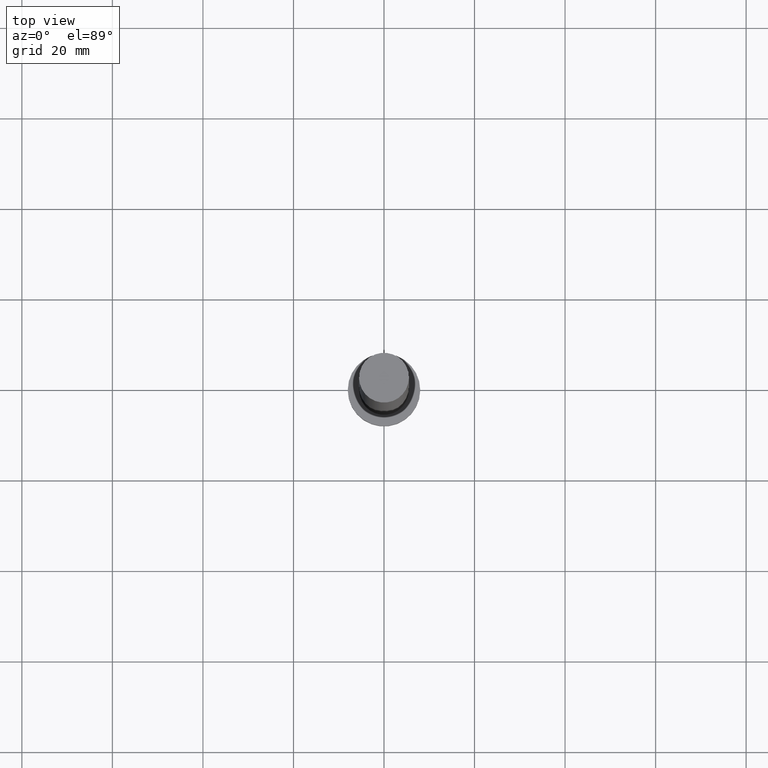
[diagram: clean part render]
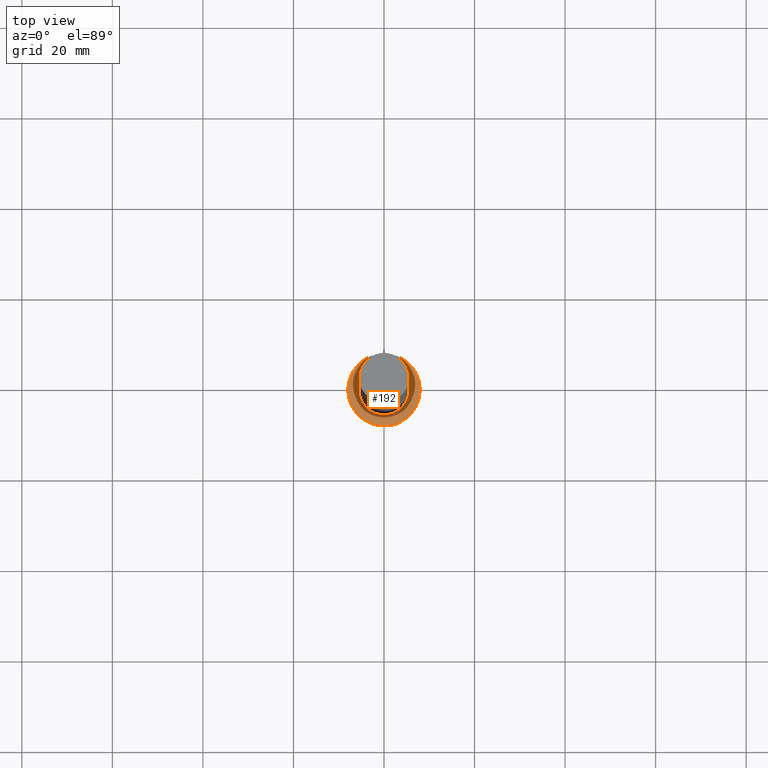
[diagram: same view with one face highlighted and labeled with its STEP entity id]
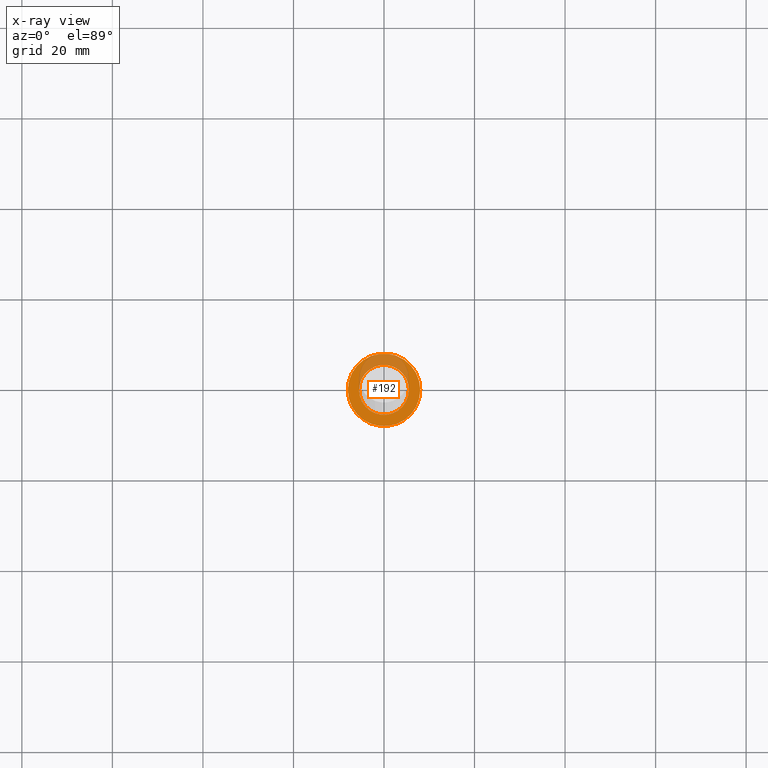
[diagram: x-ray of the same camera — body ghosted, the highlighted face saturated]
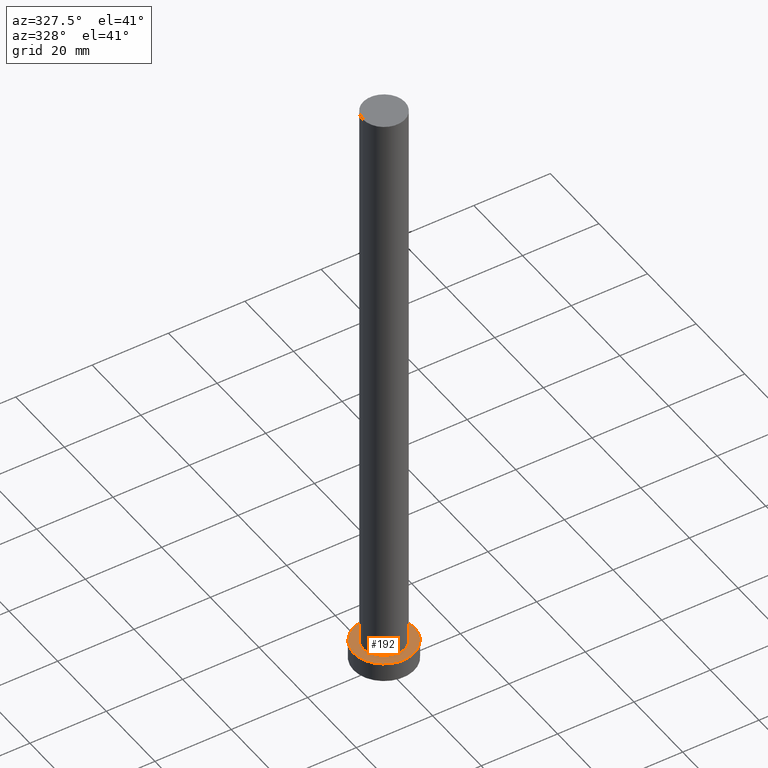
[diagram: same view with one face highlighted and labeled with its STEP entity id]
A machine part, top view. The second image highlights one B-rep face of the part: STEP entity #192.
The next image is the same camera in x-ray: the body ghosted, the highlighted face saturated — about 28% of this face is hidden behind the body in this view.
A second angle (auxiliary view) of the same face is appended — the face is thin or edge-on in the first view.
In plain terms, the highlighted planar face has unit normal (0, 0, 1).
Its self-contained STEP definition (entity closure, byte-faithful):
#11 = ORIENTED_EDGE ( 'NONE', *, *, #247, .F. ) ;
#12 = ORIENTED_EDGE ( 'NONE', *, *, #101, .T. ) ;
#19 = PLANE ( 'NONE',  #204 ) ;
#27 = DIRECTION ( 'NONE',  ( 1.000000000000000000, 0.000000000000000000, 0.000000000000000000 ) ) ;
#36 = VERTEX_POINT ( 'NONE', #100 ) ;
#40 = FACE_BOUND ( 'NONE', #167, .T. ) ;
#43 = DIRECTION ( 'NONE',  ( 0.000000000000000000, 0.000000000000000000, 1.000000000000000000 ) ) ;
#62 = DIRECTION ( 'NONE',  ( 1.000000000000000000, 0.000000000000000000, 0.000000000000000000 ) ) ;
#67 = EDGE_CURVE ( 'NONE', #188, #97, #106, .T. ) ;
#68 = DIRECTION ( 'NONE',  ( 0.000000000000000000, 0.000000000000000000, 1.000000000000000000 ) ) ;
#77 = DIRECTION ( 'NONE',  ( 0.000000000000000000, 0.000000000000000000, 1.000000000000000000 ) ) ;
#78 = DIRECTION ( 'NONE',  ( 0.000000000000000000, 0.000000000000000000, 1.000000000000000000 ) ) ;
#82 = EDGE_CURVE ( 'NONE', #36, #140, #199, .T. ) ;
#83 = AXIS2_PLACEMENT_3D ( 'NONE', #164, #68, #27 ) ;
#87 = CIRCLE ( 'NONE', #83, 5.500000000000000000 ) ;
#97 = VERTEX_POINT ( 'NONE', #156 ) ;
#100 = CARTESIAN_POINT ( 'NONE',  ( 5.500000000000000000, 6.735557395310442023E-16, 5.000000000000000000 ) ) ;
#101 = EDGE_CURVE ( 'NONE', #97, #188, #145, .T. ) ;
#106 = CIRCLE ( 'NONE', #124, 8.000000000000000000 ) ;
#113 = FACE_OUTER_BOUND ( 'NONE', #144, .T. ) ;
#115 = CARTESIAN_POINT ( 'NONE',  ( 0.000000000000000000, 0.000000000000000000, 5.000000000000000000 ) ) ;
#124 = AXIS2_PLACEMENT_3D ( 'NONE', #115, #78, #152 ) ;
#133 = AXIS2_PLACEMENT_3D ( 'NONE', #238, #218, #201 ) ;
#140 = VERTEX_POINT ( 'NONE', #241 ) ;
#144 = EDGE_LOOP ( 'NONE', ( #12, #214 ) ) ;
#145 = CIRCLE ( 'NONE', #133, 8.000000000000000000 ) ;
#148 = ORIENTED_EDGE ( 'NONE', *, *, #82, .F. ) ;
#151 = DIRECTION ( 'NONE',  ( 1.000000000000000000, 0.000000000000000000, -0.000000000000000000 ) ) ;
#152 = DIRECTION ( 'NONE',  ( 1.000000000000000000, 0.000000000000000000, 0.000000000000000000 ) ) ;
#156 = CARTESIAN_POINT ( 'NONE',  ( -8.000000000000000000, 0.000000000000000000, 5.000000000000000000 ) ) ;
#164 = CARTESIAN_POINT ( 'NONE',  ( 0.000000000000000000, 0.000000000000000000, 5.000000000000000000 ) ) ;
#167 = EDGE_LOOP ( 'NONE', ( #11, #148 ) ) ;
#176 = CARTESIAN_POINT ( 'NONE',  ( 0.000000000000000000, 0.000000000000000000, 5.000000000000000000 ) ) ;
#188 = VERTEX_POINT ( 'NONE', #221 ) ;
#192 = ADVANCED_FACE ( 'NONE', ( #40, #113 ), #19, .T. ) ;
#199 = CIRCLE ( 'NONE', #230, 5.500000000000000000 ) ;
#201 = DIRECTION ( 'NONE',  ( 1.000000000000000000, 0.000000000000000000, 0.000000000000000000 ) ) ;
#204 = AXIS2_PLACEMENT_3D ( 'NONE', #252, #77, #151 ) ;
#214 = ORIENTED_EDGE ( 'NONE', *, *, #67, .T. ) ;
#218 = DIRECTION ( 'NONE',  ( 0.000000000000000000, 0.000000000000000000, 1.000000000000000000 ) ) ;
#221 = CARTESIAN_POINT ( 'NONE',  ( 8.000000000000000000, 9.797174393178825657E-16, 5.000000000000000000 ) ) ;
#230 = AXIS2_PLACEMENT_3D ( 'NONE', #176, #43, #62 ) ;
#238 = CARTESIAN_POINT ( 'NONE',  ( 0.000000000000000000, 0.000000000000000000, 5.000000000000000000 ) ) ;
#241 = CARTESIAN_POINT ( 'NONE',  ( -5.500000000000000000, 0.000000000000000000, 5.000000000000000000 ) ) ;
#247 = EDGE_CURVE ( 'NONE', #140, #36, #87, .T. ) ;
#252 = CARTESIAN_POINT ( 'NONE',  ( 0.000000000000000000, 0.000000000000000000, 5.000000000000000000 ) ) ;